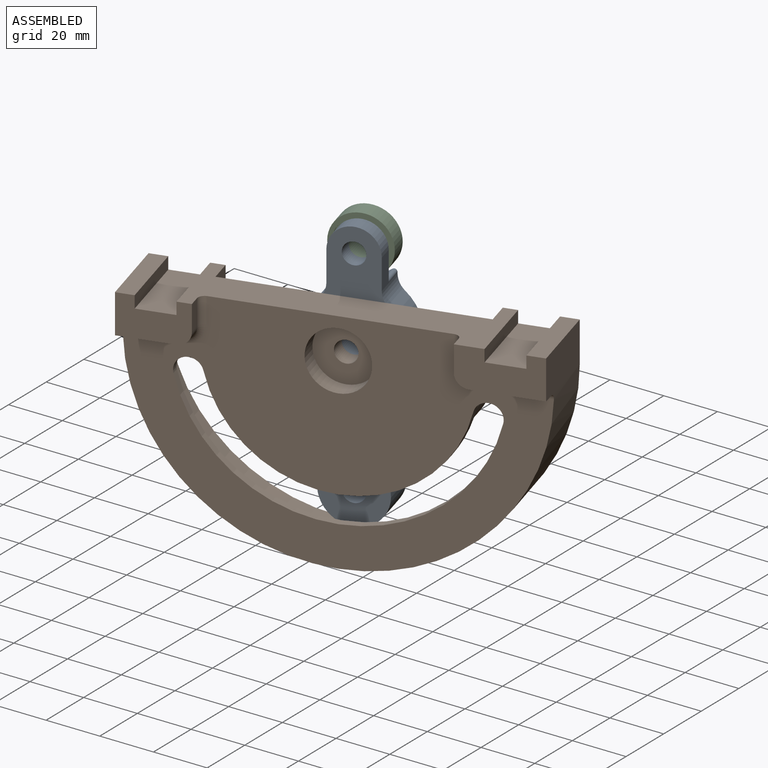
[diagram: assembled view]
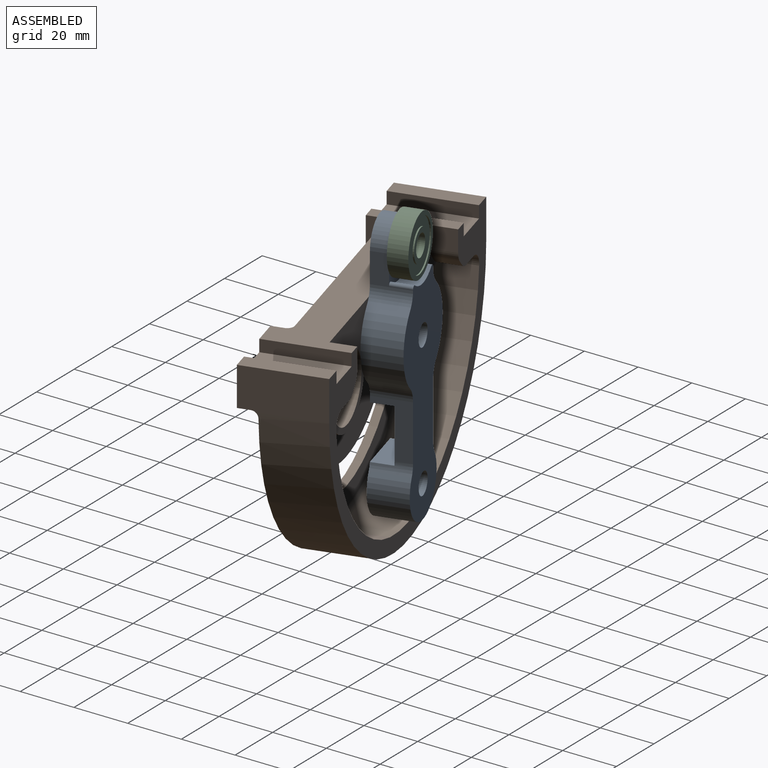
[diagram: assembled view, second angle]
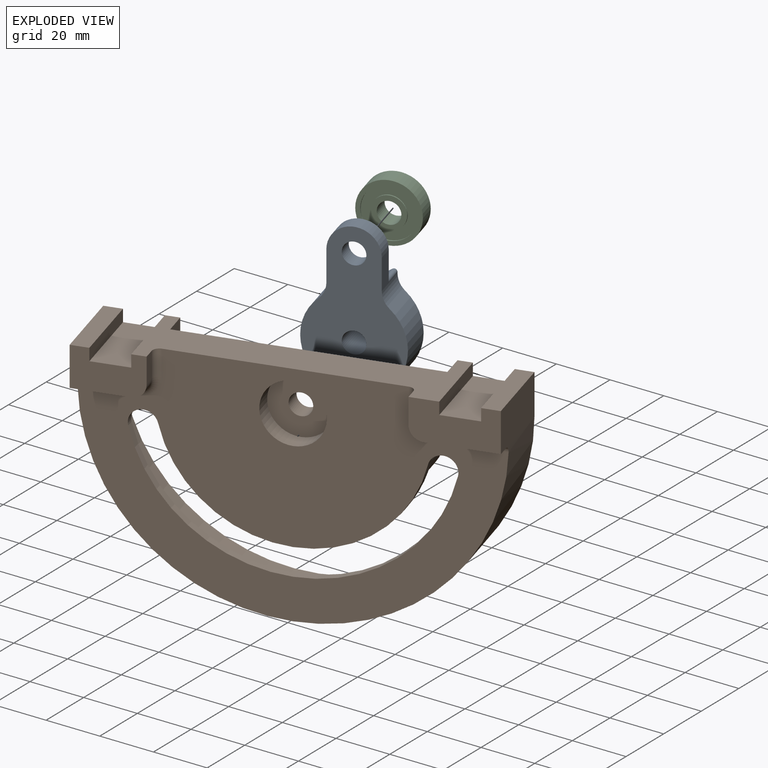
[diagram: exploded view]
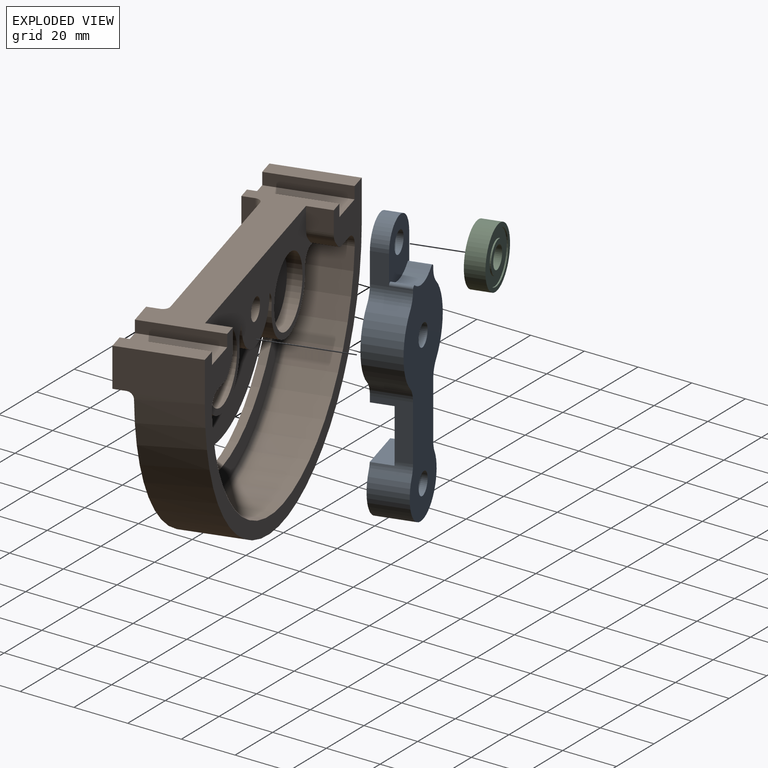
[diagram: exploded view, second angle]
ASSEMBLY  parts=3 mates=4
PART A: 27 faces, bbox 101x14x35 mm
  f0: plane 20.83x14mm, normal (0,0,-1), area 142.7mm2, adj f9,f10,f18,f19,f24,f25
  f1: plane 20.83x14mm, normal (0,0,1), area 142.7mm2, adj f12,f13,f18,f19,f24,f25
  f2: plane 24x21mm, normal (0,1,0), area 371.5mm2, adj f10,f11,f12,f17,f26
  f3: cylinder r=9mm len=18mm, axis (0,1,0), area 175.3mm2, adj f5,f6,f19,f21
  f4: cylinder r=4mm len=8mm, axis (0,1,0), area 155.8mm2, adj f19,f21
  f5: plane 14x11.22mm, normal (0,0,1), area 72.2mm2, adj f3,f16,f18,f19,f21,f22
  f6: plane 14x11.22mm, normal (0,0,-1), area 72.2mm2, adj f3,f7,f18,f19,f21,f23
  f7: cylinder r=7.5mm len=14mm, axis (0,1,0), area 89.2mm2, adj f6,f8,f18,f19
  f8: cylinder r=17.5mm len=26.29mm, axis (0,1,0), area 416.5mm2, adj f7,f9,f18,f19
  f9: cylinder r=7.5mm len=14mm, axis (0,1,0), area 89.2mm2, adj f0,f8,f18,f19
  f10: cylinder r=7.5mm len=14mm, axis (0,1,0), area 47.8mm2, adj f0,f2,f11,f18,f24,f26
  f11: cylinder r=12mm len=24mm, axis (0,1,0), area 716.6mm2, adj f2,f10,f12,f18
  f12: cylinder r=7.5mm len=14mm, axis (0,1,0), area 47.8mm2, adj f1,f2,f11,f18,f24,f26
  f13: cylinder r=7.5mm len=14mm, axis (0,1,0), area 89.2mm2, adj f1,f14,f18,f19
  f14: cylinder r=17.5mm len=26.29mm, axis (0,1,0), area 416.5mm2, adj f13,f16,f18,f19
  f15: cylinder r=4mm len=14mm, axis (0,1,0), area 351.9mm2, adj f18,f19
  f16: cylinder r=7.5mm len=14mm, axis (0,1,0), area 89.2mm2, adj f5,f14,f18,f19
  f17: cylinder r=4mm len=14mm, axis (0,1,0), area 351.9mm2, adj f2,f18
  f18: plane 82.13x35mm, normal (0,-1,0), area 1762.4mm2, adj f0,f1,f5,f6,f7,f8,f9,f10
  f19: plane 60x35mm, normal (0,1,0), area 1313.3mm2, adj f0,f1,f3,f4,f5,f6,f7,f8
  f20: cylinder r=12.5mm len=14.82mm, axis (0,-1,0), area 123.7mm2, adj f18,f21,f22,f23
  f21: plane 21.5x18mm, normal (0,-1,0), area 282.6mm2, adj f3,f4,f5,f6,f20,f22,f23
  f22: cylinder r=1mm len=7.8mm, axis (0,-1,0), area 17.2mm2, adj f5,f18,f20,f21
  f23: cylinder r=1mm len=7.8mm, axis (0,-1,0), area 17.2mm2, adj f6,f18,f20,f21
  f24: plane 20x18.26mm, normal (0,1,0), area 360.1mm2, adj f0,f1,f10,f12,f25,f26
  f25: plane 18x8mm, normal (1,0,0), area 144mm2, adj f0,f1,f19,f24
  f26: plane 18.26x8mm, normal (-1,0,0), area 146.1mm2, adj f2,f10,f12,f24
PART B: 69 faces, bbox 140x30x85 mm
  f0: plane 123.58x57mm, normal (0,-1,0), area 1271mm2, adj f4,f5,f6,f44,f47,f48,f53,f56
  f1: plane 87.61x45mm, normal (0,-1,0), area 1804.8mm2, adj f9,f42,f47,f48,f63,f64
  f2: plane 15x9.67mm, normal (0,0,-1), area 118.5mm2, adj f10,f11,f54,f56,f57,f67
  f3: plane 15x9.67mm, normal (0,0,-1), area 118.5mm2, adj f10,f11,f58,f60,f62,f66
  f4: cylinder r=5mm len=9.87mm, axis (0,1,0), area 47.1mm2, adj f0,f6,f9,f30
  f5: cylinder r=5mm len=9.87mm, axis (0,1,0), area 47.1mm2, adj f0,f6,f9,f30
  f6: cylinder r=55mm len=107.08mm, axis (0,1,0), area 442.1mm2, adj f0,f4,f5,f30
  f7: plane 9x7.93mm, normal (1,0,0), area 71.4mm2, adj f10,f11,f13,f68
  f8: plane 9x7.93mm, normal (-1,0,0), area 71.4mm2, adj f10,f11,f13,f65
  f9: cylinder r=45mm len=87.61mm, axis (0,1,0), area 361.7mm2, adj f1,f4,f5,f30
  f10: plane 104.14x36.87mm, normal (0,-1,0), area 1690.1mm2, adj f2,f3,f7,f8,f13,f25,f42,f45
  f11: plane 140x85mm, normal (0,-1,0), area 1875.6mm2, adj f2,f3,f7,f8,f12,f13,f14,f15
  f12: plane 30x6.4mm, normal (0,0,1), area 192mm2, adj f11,f15,f20,f27
  f13: plane 100x30mm, normal (0,0,1), area 1597.7mm2, adj f7,f8,f10,f11,f17,f22,f23,f27
  f14: plane 30x15mm, normal (-1,0,0), area 447.2mm2, adj f11,f16,f23,f26,f29,f37
  f15: plane 30x15mm, normal (1,0,0), area 447.2mm2, adj f11,f12,f16,f27,f31,f39
  f16: cylinder r=70mm len=140mm, axis (0,1,0), area 5059.2mm2, adj f11,f14,f15,f30,f37,f39
  f17: plane 30x4.5mm, normal (-1,0,0), area 135mm2, adj f11,f13,f18,f23
  f18: plane 30x13.6mm, normal (0,0,1), area 408mm2, adj f11,f17,f19,f23
  f19: plane 30x4.5mm, normal (1,0,0), area 135mm2, adj f11,f18,f23,f26
  f20: plane 30x4.5mm, normal (-1,0,0), area 135mm2, adj f11,f12,f21,f27
  f21: plane 30x13.6mm, normal (0,0,1), area 408mm2, adj f11,f20,f22,f27
  f22: plane 30x4.5mm, normal (1,0,0), area 135mm2, adj f11,f13,f21,f27
  f23: plane 30x14.5mm, normal (0,1,0), area 368.4mm2, adj f13,f14,f17,f18,f19,f26,f29,f32
  f24: cylinder r=10.98mm len=21.97mm, axis (0,1,0), area 483.1mm2, adj f28,f30
  f25: cylinder r=4mm len=8mm, axis (0,1,0), area 175.9mm2, adj f10,f28
  f26: plane 30x6.4mm, normal (0,0,1), area 192mm2, adj f11,f14,f19,f23
  f27: plane 25x14.5mm, normal (0,1,0), area 295.9mm2, adj f12,f13,f15,f20,f21,f22,f31,f34
  f28: plane 21.97x21.97mm, normal (0,1,0), area 328.8mm2, adj f24,f25
  f29: plane 25x4.5mm, normal (0,0,-1), area 112.5mm2, adj f14,f23,f32,f37
  f30: plane 139.94x85mm, normal (0,1,0), area 7003.7mm2, adj f4,f5,f6,f9,f13,f16,f24,f36
  f31: plane 20x4.5mm, normal (0,0,-1), area 90mm2, adj f15,f27,f35,f39
  f32: cylinder r=5mm len=5mm, axis (0,1,0), area 35.3mm2, adj f23,f29,f33,f38
  f33: plane 9.5x4.5mm, normal (1,0,0), area 42.7mm2, adj f13,f23,f32,f36
  f34: plane 9.5x4.5mm, normal (-1,0,0), area 42.7mm2, adj f13,f27,f35,f40
  f35: cylinder r=5mm len=5mm, axis (0,1,0), area 35.3mm2, adj f27,f31,f34,f41
  f36: cylinder r=2.5mm len=9.5mm, axis (0,0,1), area 37.3mm2, adj f13,f30,f33,f38
  f37: cylinder r=2.5mm len=25mm, axis (1,0,0), area 98.1mm2, adj f14,f16,f29,f30,f38
  f38: torus R=7.5mm, axis (0,1,0), area 36.4mm2, adj f30,f32,f36,f37
  f39: cylinder r=2.5mm len=20mm, axis (1,0,0), area 78.5mm2, adj f15,f16,f30,f31,f41
  f40: cylinder r=2.5mm len=9.5mm, axis (0,0,-1), area 37.3mm2, adj f13,f30,f34,f41
  f41: torus R=7.5mm, axis (0,1,0), area 36.4mm2, adj f30,f35,f39,f40
  f42: cylinder r=12.5mm len=25mm, axis (0,-1,0), area 432mm2, adj f1,f10,f63,f64
  f43: cylinder r=64mm len=127.54mm, axis (0,-1,0), area 3423.6mm2, adj f11,f44,f54,f58
  f44: torus R=62mm, axis (0,-1,0), area 590.8mm2, adj f0,f43,f53,f59
  f45: plane 9x2.07mm, normal (0.71,0,-0.71), area 26.4mm2, adj f10,f11,f67,f68
  f46: plane 9x2.07mm, normal (-0.71,0,-0.71), area 26.4mm2, adj f10,f11,f65,f66
  f47: cylinder r=15mm len=30mm, axis (0,1,0), area 558.1mm2, adj f0,f1,f10,f60,f64
  f48: cylinder r=15mm len=30mm, axis (0,1,0), area 558.1mm2, adj f0,f1,f10,f56,f63
  f49: cylinder r=12.7mm len=25.4mm, axis (0,-1,0), area 405.4mm2, adj f10,f50
  f50: plane 25.4x25.4mm, normal (0,-1,0), area 506.7mm2, adj f49
  f51: cylinder r=12.7mm len=25.4mm, axis (0,-1,0), area 405.4mm2, adj f10,f52
  f52: plane 25.4x25.4mm, normal (0,-1,0), area 506.7mm2, adj f51
  f53: torus R=3mm, axis (0,-1,0), area 1.1mm2, adj f0,f44,f54,f55
  f54: cylinder r=5mm len=18mm, axis (0,-1,0), area 140.4mm2, adj f2,f11,f43,f53,f55
  f55: bspline ~5.91x5mm, area 16.7mm2, adj f53,f54,f57
  f56: cylinder r=5mm len=11mm, axis (0,1,0), area 77.3mm2, adj f0,f2,f10,f48,f57
  f57: cylinder r=5mm len=17.67mm, axis (-1,0,0), area 116mm2, adj f0,f2,f55,f56
  f58: cylinder r=5mm len=18mm, axis (0,-1,0), area 140.4mm2, adj f3,f11,f43,f59,f61
  f59: torus R=3mm, axis (0,-1,0), area 1.1mm2, adj f0,f44,f58,f61
  f60: cylinder r=5mm len=11mm, axis (0,1,0), area 77.3mm2, adj f0,f3,f10,f47,f62
  f61: bspline ~5.91x5mm, area 16.7mm2, adj f58,f59,f62
  f62: cylinder r=5mm len=17.67mm, axis (-1,0,0), area 116mm2, adj f0,f3,f60,f61
  f63: cylinder r=5mm len=11mm, axis (0,-1,0), area 58mm2, adj f1,f10,f42,f48
  f64: cylinder r=5mm len=11mm, axis (0,1,0), area 58mm2, adj f1,f10,f42,f47
  f65: cylinder r=5mm len=9mm, axis (0,1,0), area 35.3mm2, adj f8,f10,f11,f46
  f66: cylinder r=5mm len=9mm, axis (0,1,0), area 35.3mm2, adj f3,f10,f11,f46
  f67: cylinder r=5mm len=9mm, axis (0,1,0), area 35.3mm2, adj f2,f10,f11,f45
  f68: cylinder r=5mm len=9mm, axis (0,-1,0), area 35.3mm2, adj f7,f10,f11,f45
PART C: 12 faces, bbox 22x22x7 mm
  f0: plane 11.8x11.8mm, normal (0,0,-1), area 59mm2, adj f2,f9
  f1: plane 11.8x11.8mm, normal (0,0,1), area 59mm2, adj f2,f6
  f2: cylinder r=4mm len=8.01mm, axis (0,0,-1), area 176.1mm2, adj f0,f1
  f3: cylinder r=10.98mm len=21.97mm, axis (0,0,-1), area 483.1mm2, adj f4,f5
  f4: plane 21.97x21.97mm, normal (0,0,1), area 102.7mm2, adj f3,f7
  f5: plane 21.97x21.97mm, normal (0,0,-1), area 102.7mm2, adj f3,f10
  f6: cylinder r=5.9mm len=11.8mm, axis (0,0,1), area 18.5mm2, adj f1,f8
  f7: cylinder r=9.38mm len=18.76mm, axis (0,0,1), area 29.5mm2, adj f4,f8
  f8: plane 18.76x18.76mm, normal (0,0,1), area 167.1mm2, adj f6,f7
  f9: cylinder r=5.9mm len=11.8mm, axis (0,0,-1), area 18.5mm2, adj f0,f11
  f10: cylinder r=9.38mm len=18.76mm, axis (0,0,-1), area 29.5mm2, adj f5,f11
  f11: plane 18.76x18.76mm, normal (0,0,-1), area 167.1mm2, adj f9,f10
PLACE A rot(axis=(0.7,0.09,-0.7),169.4deg) t=(78.98,-88.51,65.77)mm
PLACE B rot(axis=(0,0,-1),165deg) t=(75.72,-111.12,26.77)mm
PLACE C rot(axis=(-0.52,-0.68,-0.52),111.5deg) t=(68.68,-84.85,56.77)mm
MATE cylindrical A.f3 <-> C.f2  axis (0.26,-0.97,0) through (69.49,-87.84,56.77)mm
MATE planar C.f10 <-> A.f21  axis (0.26,-0.97,0) through (68.68,-84.85,56.77)mm
MATE cylindrical A.f8 <-> B.f24  axis (0.26,-0.97,0) through (68.48,-84.08,26.77)mm
MATE planar A.f19 <-> B.f10  axis (0.26,-0.97,0) through (70.29,-90.84,32.04)mm
